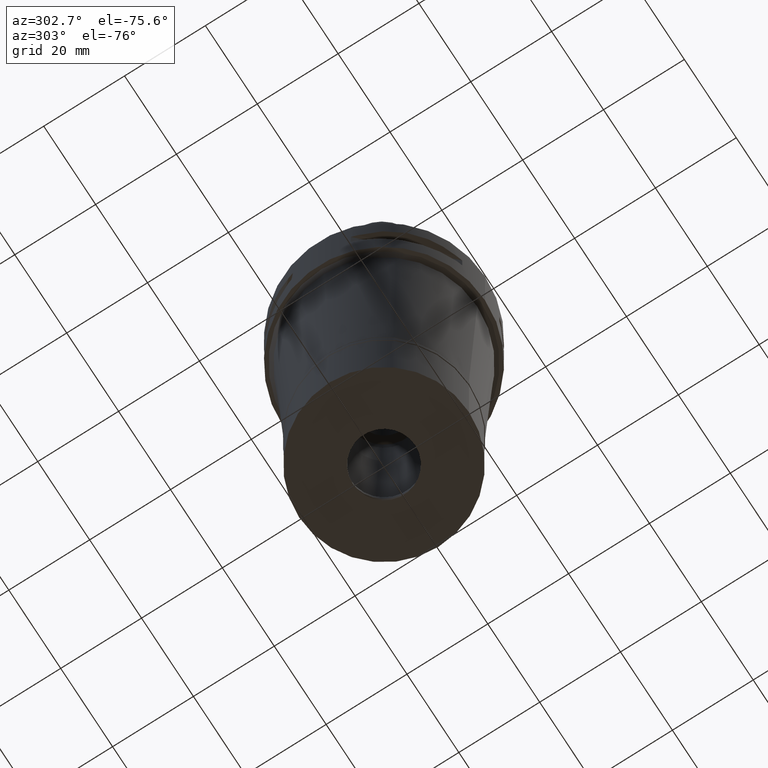
[diagram: clean part render]
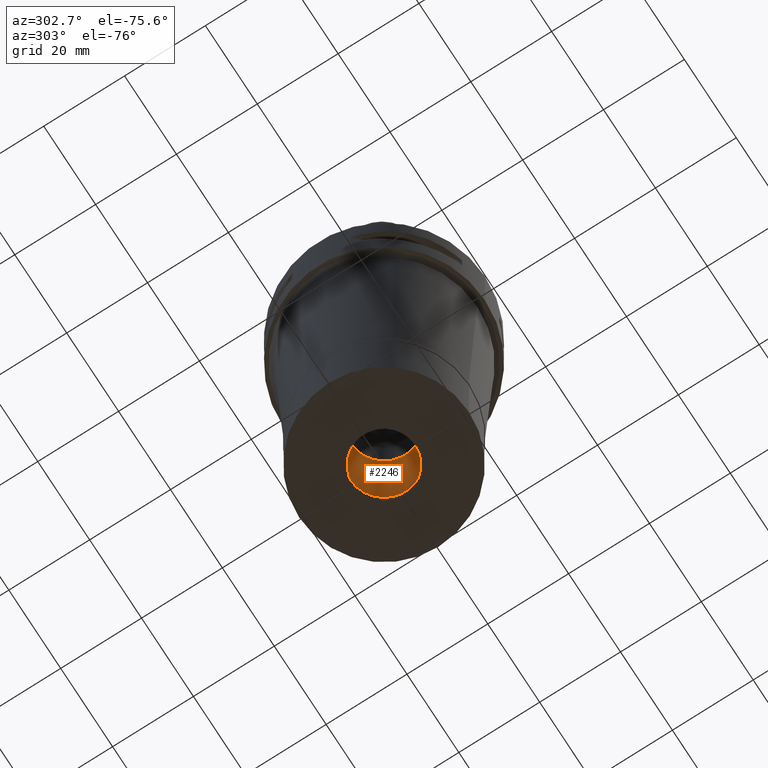
[diagram: same view with one face highlighted and labeled with its STEP entity id]
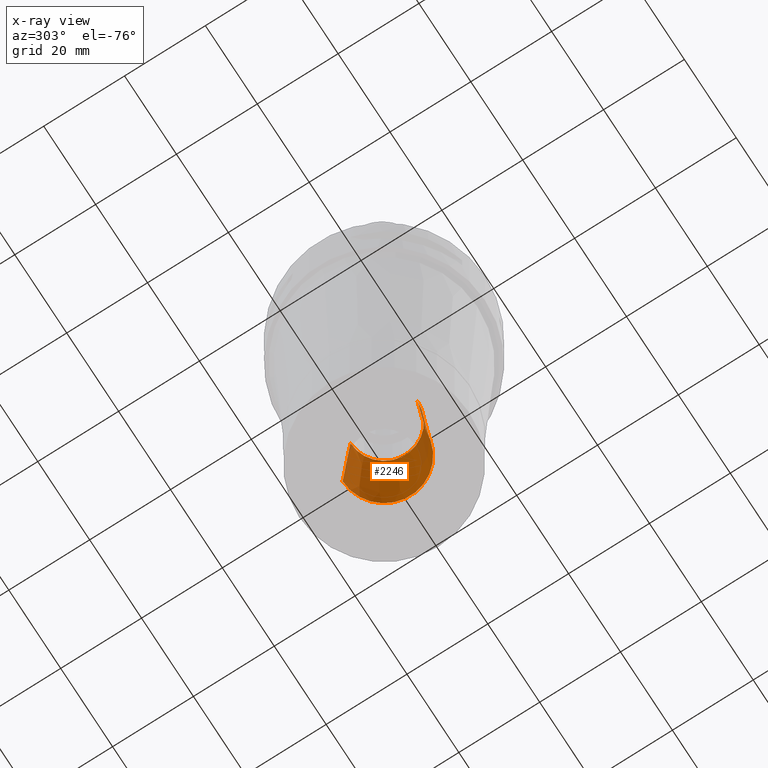
[diagram: x-ray of the same camera — body ghosted, the highlighted face saturated]
A machine part, auxiliary view. The second image highlights one B-rep face of the part: STEP entity #2246.
The next image is the same camera in x-ray: the body ghosted, the highlighted face saturated — about 9% of this face is hidden behind the body in this view.
In plain terms, the highlighted conical surface has half-angle 4 deg.
Its self-contained STEP definition (entity closure, byte-faithful):
#45 = DIRECTION ( 'NONE',  ( 0.0000000000000000000, -1.000000000000000000, 0.0000000000000000000 ) ) ;
#76 = CARTESIAN_POINT ( 'NONE',  ( 0.0000000000000000000, 10.25000000000000000, -97.50000000000000000 ) ) ;
#453 = AXIS2_PLACEMENT_3D ( 'NONE', #3468, #4269, #848 ) ;
#659 = ORIENTED_EDGE ( 'NONE', *, *, #1200, .T. ) ;
#790 = ORIENTED_EDGE ( 'NONE', *, *, #3916, .T. ) ;
#848 = DIRECTION ( 'NONE',  ( 0.0000000000000000000, 1.000000000000000000, 0.0000000000000000000 ) ) ;
#1080 = CIRCLE ( 'NONE', #453, 8.300000000000000711 ) ;
#1200 = EDGE_CURVE ( 'NONE', #1433, #4791, #3960, .T. ) ;
#1433 = VERTEX_POINT ( 'NONE', #3956 ) ;
#1478 = AXIS2_PLACEMENT_3D ( 'NONE', #4426, #2155, #3976 ) ;
#1549 = CONICAL_SURFACE ( 'NONE', #3515, 9.275000000000000355, 0.06981317007975955391 ) ;
#1697 = EDGE_CURVE ( 'NONE', #3713, #3547, #3054, .T. ) ;
#1760 = ORIENTED_EDGE ( 'NONE', *, *, #1697, .F. ) ;
#2060 = CARTESIAN_POINT ( 'NONE',  ( 0.0000000000000000000, -8.300000000000000711, -69.61370079940999744 ) ) ;
#2088 = DIRECTION ( 'NONE',  ( 0.0000000000000000000, 0.06975647374412173585, 0.9975640502598245307 ) ) ;
#2155 = DIRECTION ( 'NONE',  ( 0.0000000000000000000, 0.0000000000000000000, -1.000000000000000000 ) ) ;
#2246 = ADVANCED_FACE ( 'NONE', ( #3810 ), #1549, .F. ) ;
#2290 = DIRECTION ( 'NONE',  ( 0.0000000000000000000, 0.0000000000000000000, -1.000000000000000000 ) ) ;
#2581 = VECTOR ( 'NONE', #2088, 1000.000000000000000 ) ;
#2584 = EDGE_LOOP ( 'NONE', ( #790, #659, #3198, #1760 ) ) ;
#2693 = EDGE_CURVE ( 'NONE', #3547, #4791, #1080, .T. ) ;
#2907 = CIRCLE ( 'NONE', #1478, 10.25000000000000000 ) ;
#3054 = LINE ( 'NONE', #76, #4074 ) ;
#3198 = ORIENTED_EDGE ( 'NONE', *, *, #2693, .F. ) ;
#3253 = CARTESIAN_POINT ( 'NONE',  ( 0.0000000000000000000, 8.300000000000000711, -69.61370079940999744 ) ) ;
#3429 = DIRECTION ( 'NONE',  ( 0.0000000000000000000, -0.06975647374412173585, 0.9975640502598245307 ) ) ;
#3468 = CARTESIAN_POINT ( 'NONE',  ( 0.0000000000000000000, 0.0000000000000000000, -69.61370079940999744 ) ) ;
#3515 = AXIS2_PLACEMENT_3D ( 'NONE', #4163, #2290, #45 ) ;
#3547 = VERTEX_POINT ( 'NONE', #3253 ) ;
#3713 = VERTEX_POINT ( 'NONE', #4094 ) ;
#3810 = FACE_OUTER_BOUND ( 'NONE', #2584, .T. ) ;
#3916 = EDGE_CURVE ( 'NONE', #3713, #1433, #2907, .T. ) ;
#3956 = CARTESIAN_POINT ( 'NONE',  ( 0.0000000000000000000, -10.25000000000000000, -97.50000000000000000 ) ) ;
#3960 = LINE ( 'NONE', #4326, #2581 ) ;
#3976 = DIRECTION ( 'NONE',  ( 0.0000000000000000000, 1.000000000000000000, 0.0000000000000000000 ) ) ;
#4074 = VECTOR ( 'NONE', #3429, 1000.000000000000000 ) ;
#4094 = CARTESIAN_POINT ( 'NONE',  ( 0.0000000000000000000, 10.25000000000000000, -97.50000000000000000 ) ) ;
#4163 = CARTESIAN_POINT ( 'NONE',  ( 0.0000000000000000000, 0.0000000000000000000, -83.55685039971000094 ) ) ;
#4269 = DIRECTION ( 'NONE',  ( 0.0000000000000000000, 0.0000000000000000000, -1.000000000000000000 ) ) ;
#4326 = CARTESIAN_POINT ( 'NONE',  ( 0.0000000000000000000, -10.25000000000000000, -97.50000000000000000 ) ) ;
#4426 = CARTESIAN_POINT ( 'NONE',  ( 0.0000000000000000000, 0.0000000000000000000, -97.50000000000000000 ) ) ;
#4791 = VERTEX_POINT ( 'NONE', #2060 ) ;